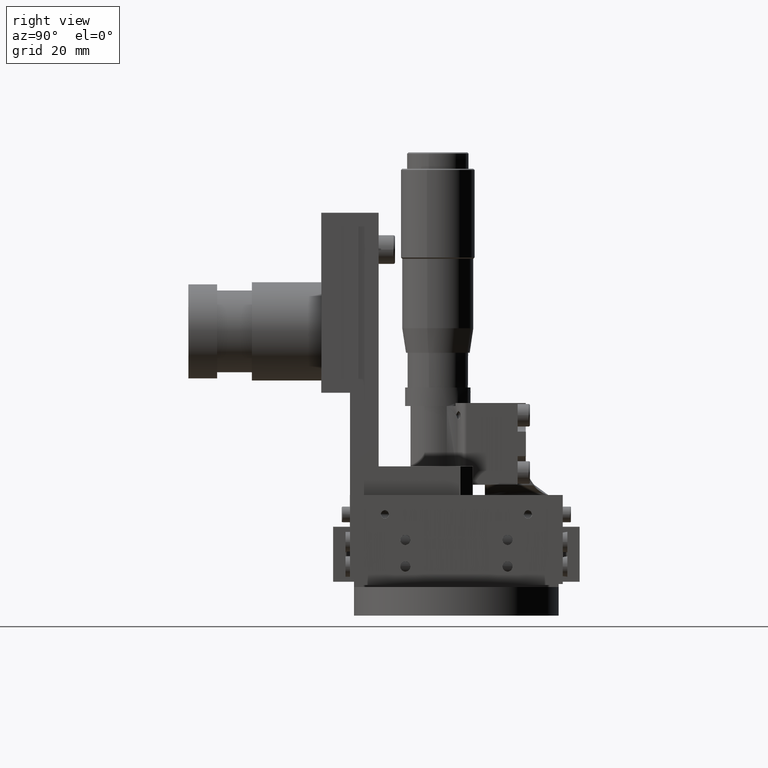
[diagram: clean part render]
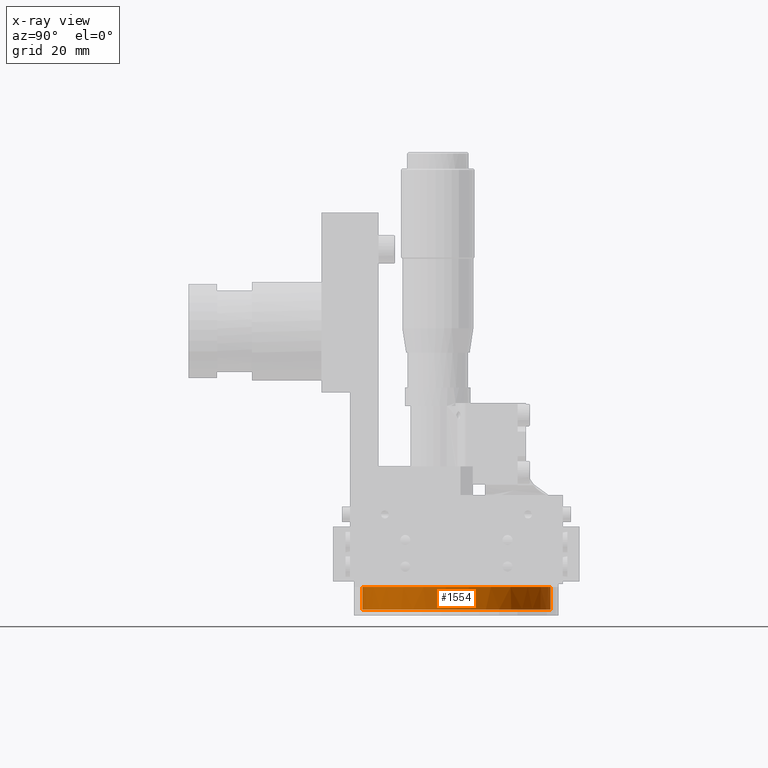
[diagram: x-ray — body ghosted, one internal face saturated and labeled with its STEP entity id]
A machine part, right view, then the same camera in x-ray: the body is ghosted and one INTERNAL B-rep face — a face not visible from any outside direction — is saturated and labeled: STEP entity #1554.
In plain terms, the highlighted face is a freeform B-spline surface patch.
Its self-contained STEP definition (entity closure, byte-faithful):
#212=B_SPLINE_SURFACE_WITH_KNOTS('',1,1,((#40897,#40898),(#40899,#40900)),
 .UNSPECIFIED.,.F.,.F.,.F.,(2,2),(2,2),(-45.511755249109,-4.48323901406241),
(-8.39228675939994,0.896858917189431),.UNSPECIFIED.);
#283=B_SPLINE_SURFACE_WITH_KNOTS('',1,1,((#42717,#42718),(#42719,#42720)),
 .UNSPECIFIED.,.F.,.F.,.F.,(2,2),(2,2),(-38.8628405200425,35.6357210641812),
(-4.34278893898734,70.1557726452363),.UNSPECIFIED.);
#288=B_SPLINE_SURFACE_WITH_KNOTS('',1,1,((#43043,#43044),(#43045,#43046)),
 .UNSPECIFIED.,.F.,.F.,.F.,(2,2),(2,2),(-34.256608843568,31.041745323592),
(13.1946699894578,62.1183055318018),.UNSPECIFIED.);
#1554=ADVANCED_FACE('',(#2542),#35904,.T.);
#2542=FACE_OUTER_BOUND('',#3590,.T.);
#3590=EDGE_LOOP('',(#6323,#6324,#6325,#6326,#6327,#6328));
#6323=ORIENTED_EDGE('',*,*,#26129,.F.);
#6324=ORIENTED_EDGE('',*,*,#26132,.T.);
#6325=ORIENTED_EDGE('',*,*,#25576,.F.);
#6326=ORIENTED_EDGE('',*,*,#26130,.F.);
#6327=ORIENTED_EDGE('',*,*,#26123,.F.);
#6328=ORIENTED_EDGE('',*,*,#26125,.F.);
#10079=(
BOUNDED_CURVE()
B_SPLINE_CURVE(2,(#50669,#50670,#50671),.UNSPECIFIED.,.F.,.F.)
B_SPLINE_CURVE_WITH_KNOTS((3,3),(0.,19.1199882821081),.UNSPECIFIED.)
CURVE()
GEOMETRIC_REPRESENTATION_ITEM()
RATIONAL_B_SPLINE_CURVE((1.,0.91485327880437,1.))
REPRESENTATION_ITEM('')
);
#10080=(
BOUNDED_CURVE()
B_SPLINE_CURVE(2,(#50672,#50673,#50674),.UNSPECIFIED.,.F.,.F.)
B_SPLINE_CURVE_WITH_KNOTS((3,3),(0.,19.1199882821081),.UNSPECIFIED.)
CURVE()
GEOMETRIC_REPRESENTATION_ITEM()
RATIONAL_B_SPLINE_CURVE((1.,0.914853356549543,1.))
REPRESENTATION_ITEM('')
);
#10399=(
BOUNDED_CURVE()
B_SPLINE_CURVE(2,(#55107,#55108,#55109,#55110,#55111),.UNSPECIFIED.,.F.,
 .F.)
B_SPLINE_CURVE_WITH_KNOTS((3,2,3),(72.2566310325652,108.384946548848,144.51326206513),
 .UNSPECIFIED.)
CURVE()
GEOMETRIC_REPRESENTATION_ITEM()
RATIONAL_B_SPLINE_CURVE((1.,0.707106781186548,1.,0.707106781186548,1.))
REPRESENTATION_ITEM('')
);
#10400=(
BOUNDED_CURVE()
B_SPLINE_CURVE(2,(#55112,#55113,#55114,#55115,#55116),.UNSPECIFIED.,.F.,
 .F.)
B_SPLINE_CURVE_WITH_KNOTS((3,2,3),(72.2566310325652,108.384946548848,144.51326206513),
 .UNSPECIFIED.)
CURVE()
GEOMETRIC_REPRESENTATION_ITEM()
RATIONAL_B_SPLINE_CURVE((1.,0.707106781186548,1.,0.707106781186548,1.))
REPRESENTATION_ITEM('')
);
#10403=(
BOUNDED_CURVE()
B_SPLINE_CURVE(2,(#55123,#55124,#55125,#55126,#55127),.UNSPECIFIED.,.F.,
 .F.)
B_SPLINE_CURVE_WITH_KNOTS((3,2,3),(36.1129552283372,54.1847931304512,72.2566310325652),
 .UNSPECIFIED.)
CURVE()
GEOMETRIC_REPRESENTATION_ITEM()
RATIONAL_B_SPLINE_CURVE((1.,0.923815626942237,1.,0.923815626942237,1.))
REPRESENTATION_ITEM('')
);
#10404=(
BOUNDED_CURVE()
B_SPLINE_CURVE(2,(#55128,#55129,#55130,#55131,#55132),.UNSPECIFIED.,.F.,
 .F.)
B_SPLINE_CURVE_WITH_KNOTS((3,2,3),(36.1129552283372,36.1300130583099,72.2566310325652),
 .UNSPECIFIED.)
CURVE()
GEOMETRIC_REPRESENTATION_ITEM()
RATIONAL_B_SPLINE_CURVE((1.,0.99999994424895,1.,0.707106781186548,1.))
REPRESENTATION_ITEM('')
);
#10412=(
BOUNDED_CURVE()
B_SPLINE_CURVE(2,(#55178,#55179,#55180,#55181,#55182,#55183,#55184,#55185,
#55186),.UNSPECIFIED.,.F.,.F.)
B_SPLINE_CURVE_WITH_KNOTS((3,2,2,2,3),(-89.2803185546852,-66.9602389160139,
-44.6401592773426,-22.3200796386713,0.),.UNSPECIFIED.)
CURVE()
GEOMETRIC_REPRESENTATION_ITEM()
RATIONAL_B_SPLINE_CURVE((1.,0.884572771092192,1.,0.884572771092192,1.,0.884572771092192,
1.,0.884572771092192,1.))
REPRESENTATION_ITEM('')
);
#10437=(
BOUNDED_CURVE()
B_SPLINE_CURVE(2,(#55541,#55542,#55543,#55544,#55545,#55546,#55547,#55548,
#55549),.UNSPECIFIED.,.F.,.F.)
B_SPLINE_CURVE_WITH_KNOTS((3,2,2,2,3),(-89.2803185546852,-79.6194882966588,
-53.0796588644392,-26.5398294322196,0.),.UNSPECIFIED.)
CURVE()
GEOMETRIC_REPRESENTATION_ITEM()
RATIONAL_B_SPLINE_CURVE((1.,0.978412850141481,1.,0.837790673898807,1.,0.837790673898807,
1.,0.837790673898807,1.))
REPRESENTATION_ITEM('')
);
#12648=PCURVE('',#212,#17938);
#13574=PCURVE('',#283,#18864);
#13576=PCURVE('',#283,#18866);
#13580=PCURVE('',#35903,#18870);
#13582=PCURVE('',#35903,#18872);
#13585=PCURVE('',#35904,#18875);
#13586=PCURVE('',#35904,#18876);
#13587=PCURVE('',#35904,#18877);
#13588=PCURVE('',#35904,#18878);
#13589=PCURVE('',#35904,#18879);
#13590=PCURVE('',#35904,#18880);
#13695=PCURVE('',#288,#18985);
#17938=DEFINITIONAL_REPRESENTATION('',(#10080),#78139);
#18864=DEFINITIONAL_REPRESENTATION('',(#10400),#78139);
#18866=DEFINITIONAL_REPRESENTATION('',(#10404),#78139);
#18870=DEFINITIONAL_REPRESENTATION('',(#30106),#78139);
#18872=DEFINITIONAL_REPRESENTATION('',(#30109),#78139);
#18875=DEFINITIONAL_REPRESENTATION('',(#30112),#78139);
#18876=DEFINITIONAL_REPRESENTATION('',(#30113),#78139);
#18877=DEFINITIONAL_REPRESENTATION('',(#30114),#78139);
#18878=DEFINITIONAL_REPRESENTATION('',(#30115),#78139);
#18879=DEFINITIONAL_REPRESENTATION('',(#30116),#78139);
#18880=DEFINITIONAL_REPRESENTATION('',(#30117),#78139);
#18985=DEFINITIONAL_REPRESENTATION('',(#10437),#78139);
#22797=SURFACE_CURVE('',#10079,(#12648,#13587),.PCURVE_S1.);
#23344=SURFACE_CURVE('',#10399,(#13574,#13589),.PCURVE_S1.);
#23346=SURFACE_CURVE('',#10403,(#13576,#13590),.PCURVE_S1.);
#23350=SURFACE_CURVE('',#30105,(#13580,#13585),.PCURVE_S1.);
#23351=SURFACE_CURVE('',#30108,(#13582,#13588),.PCURVE_S1.);
#23353=SURFACE_CURVE('',#10412,(#13586,#13695),.PCURVE_S1.);
#25576=EDGE_CURVE('',#34261,#34262,#22797,.T.);
#26123=EDGE_CURVE('',#34619,#34620,#23344,.T.);
#26125=EDGE_CURVE('',#34623,#34619,#23346,.T.);
#26129=EDGE_CURVE('',#34624,#34623,#23350,.T.);
#26130=EDGE_CURVE('',#34620,#34261,#23351,.T.);
#26132=EDGE_CURVE('',#34624,#34262,#23353,.T.);
#30105=B_SPLINE_CURVE_WITH_KNOTS('',1,(#55159,#55160),.UNSPECIFIED.,.F.,
 .F.,(2,2),(-6.17000000000011,-0.670000000000115),.UNSPECIFIED.);
#30106=B_SPLINE_CURVE_WITH_KNOTS('',1,(#55161,#55162),.UNSPECIFIED.,.F.,
 .F.,(2,2),(-6.17000000000011,-0.670000000000115),.UNSPECIFIED.);
#30108=B_SPLINE_CURVE_WITH_KNOTS('',1,(#55165,#55166),.UNSPECIFIED.,.F.,
 .F.,(2,2),(0.,5.50000000000009),.UNSPECIFIED.);
#30109=B_SPLINE_CURVE_WITH_KNOTS('',1,(#55167,#55168),.UNSPECIFIED.,.F.,
 .F.,(2,2),(0.,5.50000000000009),.UNSPECIFIED.);
#30112=B_SPLINE_CURVE_WITH_KNOTS('',1,(#55176,#55177),.UNSPECIFIED.,.F.,
 .F.,(2,2),(-6.17000000000011,-0.670000000000115),.UNSPECIFIED.);
#30113=B_SPLINE_CURVE_WITH_KNOTS('',1,(#55187,#55188),.UNSPECIFIED.,.F.,
 .F.,(2,2),(-89.2803185546852,0.),.UNSPECIFIED.);
#30114=B_SPLINE_CURVE_WITH_KNOTS('',1,(#55189,#55190),.UNSPECIFIED.,.F.,
 .F.,(2,2),(0.,19.1199882821081),.UNSPECIFIED.);
#30115=B_SPLINE_CURVE_WITH_KNOTS('',1,(#55191,#55192),.UNSPECIFIED.,.F.,
 .F.,(2,2),(0.,5.50000000000009),.UNSPECIFIED.);
#30116=B_SPLINE_CURVE_WITH_KNOTS('',1,(#55193,#55194),.UNSPECIFIED.,.F.,
 .F.,(2,2),(72.2566310325652,144.51326206513),.UNSPECIFIED.);
#30117=B_SPLINE_CURVE_WITH_KNOTS('',1,(#55195,#55196),.UNSPECIFIED.,.F.,
 .F.,(2,2),(36.1129552283372,72.2566310325652),.UNSPECIFIED.);
#34261=VERTEX_POINT('',#46062);
#34262=VERTEX_POINT('',#46063);
#34619=VERTEX_POINT('',#46420);
#34620=VERTEX_POINT('',#46421);
#34623=VERTEX_POINT('',#46424);
#34624=VERTEX_POINT('',#46425);
#35903=(
BOUNDED_SURFACE()
B_SPLINE_SURFACE(1,2,((#42721,#42722,#42723,#42724,#42725,#42726,#42727,
#42728,#42729),(#42730,#42731,#42732,#42733,#42734,#42735,#42736,#42737,
#42738)),.UNSPECIFIED.,.F.,.F.,.F.)
B_SPLINE_SURFACE_WITH_KNOTS((2,2),(3,2,2,2,3),(0.,6.84000000000033),(0.,
36.1283155162826,72.2566310325653,108.384946548848,144.513262065131),
 .UNSPECIFIED.)
GEOMETRIC_REPRESENTATION_ITEM()
RATIONAL_B_SPLINE_SURFACE(((1.,0.707106781186548,1.,0.707106781186548,1.,
0.707106781186548,1.,0.707106781186548,1.),(1.,0.707106781186548,1.,0.707106781186548,
1.,0.707106781186548,1.,0.707106781186548,1.)))
REPRESENTATION_ITEM('')
SURFACE()
);
#35904=(
BOUNDED_SURFACE()
B_SPLINE_SURFACE(1,2,((#42739,#42740,#42741,#42742,#42743,#42744,#42745,
#42746,#42747),(#42748,#42749,#42750,#42751,#42752,#42753,#42754,#42755,
#42756)),.UNSPECIFIED.,.F.,.F.,.F.)
B_SPLINE_SURFACE_WITH_KNOTS((2,2),(3,2,2,2,3),(0.,6.84000000000033),(0.,
36.1283155162826,72.2566310325653,108.384946548848,144.513262065131),
 .UNSPECIFIED.)
GEOMETRIC_REPRESENTATION_ITEM()
RATIONAL_B_SPLINE_SURFACE(((1.,0.707106781186548,1.,0.707106781186548,1.,
0.707106781186548,1.,0.707106781186548,1.),(1.,0.707106781186548,1.,0.707106781186548,
1.,0.707106781186548,1.,0.707106781186548,1.)))
REPRESENTATION_ITEM('')
SURFACE()
);
#40897=CARTESIAN_POINT('',(199.23348663795,63.0660449572592,-27.5700664891471));
#40898=CARTESIAN_POINT('',(208.522630243021,63.0660449572592,-27.5638628395057));
#40899=CARTESIAN_POINT('',(199.206086212885,63.0660449572591,13.4584405963683));
#40900=CARTESIAN_POINT('',(208.495229817956,63.0660449572591,13.4646442460097));
#42717=CARTESIAN_POINT('',(185.837920536962,68.5660449572592,30.182036355504));
#42718=CARTESIAN_POINT('',(260.336465507693,68.5660449572592,30.2317893673469));
#42719=CARTESIAN_POINT('',(185.887673548804,68.5660449572594,-44.316508615228));
#42720=CARTESIAN_POINT('',(260.386218519536,68.5660449572594,-44.2667556033851));
#42721=CARTESIAN_POINT('',(223.112069528248,69.2360449572595,-30.0423596239402));
#42722=CARTESIAN_POINT('',(246.112069528248,69.2360449572595,-30.0423596239402));
#42723=CARTESIAN_POINT('',(246.112069528248,69.2360449572594,-7.04235962394018));
#42724=CARTESIAN_POINT('',(246.112069528248,69.2360449572594,15.9576403760598));
#42725=CARTESIAN_POINT('',(223.112069528248,69.2360449572594,15.9576403760598));
#42726=CARTESIAN_POINT('',(200.112069528248,69.2360449572594,15.9576403760598));
#42727=CARTESIAN_POINT('',(200.112069528248,69.2360449572594,-7.04235962394017));
#42728=CARTESIAN_POINT('',(200.112069528248,69.2360449572595,-30.0423596239402));
#42729=CARTESIAN_POINT('',(223.112069528248,69.2360449572595,-30.0423596239402));
#42730=CARTESIAN_POINT('',(223.112069528248,62.3960449572591,-30.0423596239402));
#42731=CARTESIAN_POINT('',(246.112069528248,62.3960449572591,-30.0423596239402));
#42732=CARTESIAN_POINT('',(246.112069528248,62.3960449572591,-7.04235962394019));
#42733=CARTESIAN_POINT('',(246.112069528248,62.396044957259,15.9576403760598));
#42734=CARTESIAN_POINT('',(223.112069528248,62.396044957259,15.9576403760598));
#42735=CARTESIAN_POINT('',(200.112069528248,62.396044957259,15.9576403760598));
#42736=CARTESIAN_POINT('',(200.112069528248,62.3960449572591,-7.04235962394019));
#42737=CARTESIAN_POINT('',(200.112069528248,62.3960449572591,-30.0423596239402));
#42738=CARTESIAN_POINT('',(223.112069528248,62.3960449572591,-30.0423596239402));
#42739=CARTESIAN_POINT('',(223.112069528248,69.2360449572595,-30.0423596239402));
#42740=CARTESIAN_POINT('',(246.112069528248,69.2360449572595,-30.0423596239402));
#42741=CARTESIAN_POINT('',(246.112069528248,69.2360449572594,-7.04235962394018));
#42742=CARTESIAN_POINT('',(246.112069528248,69.2360449572594,15.9576403760598));
#42743=CARTESIAN_POINT('',(223.112069528248,69.2360449572594,15.9576403760598));
#42744=CARTESIAN_POINT('',(200.112069528248,69.2360449572594,15.9576403760598));
#42745=CARTESIAN_POINT('',(200.112069528248,69.2360449572594,-7.04235962394017));
#42746=CARTESIAN_POINT('',(200.112069528248,69.2360449572595,-30.0423596239402));
#42747=CARTESIAN_POINT('',(223.112069528248,69.2360449572595,-30.0423596239402));
#42748=CARTESIAN_POINT('',(223.112069528248,62.3960449572591,-30.0423596239402));
#42749=CARTESIAN_POINT('',(246.112069528248,62.3960449572591,-30.0423596239402));
#42750=CARTESIAN_POINT('',(246.112069528248,62.3960449572591,-7.04235962394019));
#42751=CARTESIAN_POINT('',(246.112069528248,62.396044957259,15.9576403760598));
#42752=CARTESIAN_POINT('',(223.112069528248,62.396044957259,15.9576403760598));
#42753=CARTESIAN_POINT('',(200.112069528248,62.396044957259,15.9576403760598));
#42754=CARTESIAN_POINT('',(200.112069528248,62.3960449572591,-7.04235962394019));
#42755=CARTESIAN_POINT('',(200.112069528248,62.3960449572591,-30.0423596239402));
#42756=CARTESIAN_POINT('',(223.112069528248,62.3960449572591,-30.0423596239402));
#43043=CARTESIAN_POINT('',(203.378451773594,63.0660449572592,25.5875178974971));
#43044=CARTESIAN_POINT('',(252.302076405762,63.0660449572592,25.620190987645));
#43045=CARTESIAN_POINT('',(203.422060532195,63.0660449572594,-39.7108217078562));
#43046=CARTESIAN_POINT('',(252.345685164363,63.0660449572594,-39.6781486177082));
#46062=CARTESIAN_POINT('',(200.112074657344,63.0660449572592,-7.05771991074375));
#46063=CARTESIAN_POINT('',(207.60072464099,63.0660449572592,9.9399305569668));
#46420=CARTESIAN_POINT('',(246.112064399152,68.5660449572593,-7.02699933713661));
#46421=CARTESIAN_POINT('',(200.112074657344,68.5660449572593,-7.05771991074375));
#46424=CARTESIAN_POINT('',(223.112069528248,68.5660449572593,-30.0423596239402));
#46425=CARTESIAN_POINT('',(223.112069528248,63.0660449572593,-30.0423596239402));
#50669=CARTESIAN_POINT('',(200.112074657344,63.0660449572592,-7.05771991074375));
#50670=CARTESIAN_POINT('',(200.105295127268,63.0660449572591,3.09372836474521));
#50671=CARTESIAN_POINT('',(207.60072464099,63.0660449572592,9.9399305569668));
#50672=CARTESIAN_POINT('',(-24.9999999999997,-7.50000000000089));
#50673=CARTESIAN_POINT('',(-14.848550323376,-7.49999804543738));
#50674=CARTESIAN_POINT('',(-8.00735453203304,-5.10604579451179E-13));
#55107=CARTESIAN_POINT('',(246.112064399152,68.5660449572593,-7.02699933713662));
#55108=CARTESIAN_POINT('',(246.096704112348,68.5660449572593,15.9729955337669));
#55109=CARTESIAN_POINT('',(223.096709241444,68.5660449572593,15.9576352469633));
#55110=CARTESIAN_POINT('',(200.096714370541,68.5660449572593,15.9422749601598));
#55111=CARTESIAN_POINT('',(200.112074657345,68.5660449572593,-7.05771991074374));
#55112=CARTESIAN_POINT('',(-1.613559727931,55.9064918531235));
#55113=CARTESIAN_POINT('',(-24.613559727931,55.9064918531235));
#55114=CARTESIAN_POINT('',(-24.613559727931,32.9064918531235));
#55115=CARTESIAN_POINT('',(-24.613559727931,9.90649185312345));
#55116=CARTESIAN_POINT('',(-1.61355972793099,9.90649185312349));
#55123=CARTESIAN_POINT('',(223.112069528248,68.5660449572594,-30.0423596239402));
#55124=CARTESIAN_POINT('',(232.643480698203,68.5660449572594,-30.0423596239402));
#55125=CARTESIAN_POINT('',(239.380955270617,68.5660449572593,-23.3003840027434));
#55126=CARTESIAN_POINT('',(246.11842984303,68.5660449572593,-16.5584083815466));
#55127=CARTESIAN_POINT('',(246.112064399152,68.5660449572593,-7.02699933713661));
#55128=CARTESIAN_POINT('',(21.3864351429725,32.8911315663199));
#55129=CARTESIAN_POINT('',(21.386440272069,32.8988117088654));
#55130=CARTESIAN_POINT('',(21.386440272069,32.9064918531235));
#55131=CARTESIAN_POINT('',(21.386440272069,55.9064918531235));
#55132=CARTESIAN_POINT('',(-1.613559727931,55.9064918531235));
#55159=CARTESIAN_POINT('',(223.112069528248,63.0660449572593,-30.0423596239402));
#55160=CARTESIAN_POINT('',(223.112069528248,68.5660449572593,-30.0423596239402));
#55161=CARTESIAN_POINT('',(6.17000000000011,144.513262065131));
#55162=CARTESIAN_POINT('',(0.670000000000115,144.513262065131));
#55165=CARTESIAN_POINT('',(200.112074657344,68.5660449572593,-7.05771991074375));
#55166=CARTESIAN_POINT('',(200.112074657344,63.0660449572592,-7.05771991074375));
#55167=CARTESIAN_POINT('',(0.670000000000115,108.402005180345));
#55168=CARTESIAN_POINT('',(6.17000000000021,108.402005180345));
#55176=CARTESIAN_POINT('',(6.17000000000011,0.));
#55177=CARTESIAN_POINT('',(0.670000000000115,0.));
#55178=CARTESIAN_POINT('',(223.112069528248,63.0660449572593,-30.0423596239402));
#55179=CARTESIAN_POINT('',(235.239110923075,63.0660449572593,-30.0423596239401));
#55180=CARTESIAN_POINT('',(242.090137127959,63.0660449572593,-20.0359330423952));
#55181=CARTESIAN_POINT('',(248.941163332843,63.0660449572593,-10.0295064608503));
#55182=CARTESIAN_POINT('',(244.554931675835,63.0660449572592,1.27651427338299));
#55183=CARTESIAN_POINT('',(240.168700018827,63.0660449572592,12.5825350076163));
#55184=CARTESIAN_POINT('',(228.361776156057,63.0660449572592,15.3505093374485));
#55185=CARTESIAN_POINT('',(216.554852293287,63.0660449572592,18.1184836672807));
#55186=CARTESIAN_POINT('',(207.60072464099,63.0660449572592,9.93993055696679));
#55187=CARTESIAN_POINT('',(6.17000000000011,0.));
#55188=CARTESIAN_POINT('',(6.17000000000017,89.3341928937659));
#55189=CARTESIAN_POINT('',(6.17000000000022,108.402005180345));
#55190=CARTESIAN_POINT('',(6.17000000000017,89.3341928937659));
#55191=CARTESIAN_POINT('',(0.670000000000115,108.402005180345));
#55192=CARTESIAN_POINT('',(6.17000000000022,108.402005180345));
#55193=CARTESIAN_POINT('',(0.670000000000115,36.1453741477801));
#55194=CARTESIAN_POINT('',(0.670000000000115,108.402005180345));
#55195=CARTESIAN_POINT('',(0.670000000000115,0.));
#55196=CARTESIAN_POINT('',(0.670000000000115,36.1453741477801));
#55541=CARTESIAN_POINT('',(21.3864351429725,32.89113156632));
#55542=CARTESIAN_POINT('',(21.3896795347508,37.7491785034699));
#55543=CARTESIAN_POINT('',(19.4280656845697,42.1935796636271));
#55544=CARTESIAN_POINT('',(13.3756330827651,55.9064918531235));
#55545=CARTESIAN_POINT('',(-1.61355972793105,55.9064918531235));
#55546=CARTESIAN_POINT('',(-16.6027525386272,55.9064918531235));
#55547=CARTESIAN_POINT('',(-22.6551851404317,42.193579663627));
#55548=CARTESIAN_POINT('',(-28.7076177422362,28.4806674741306));
#55549=CARTESIAN_POINT('',(-18.6062051958977,17.4064918531239));
#78139=(
GEOMETRIC_REPRESENTATION_CONTEXT(2)
PARAMETRIC_REPRESENTATION_CONTEXT()
REPRESENTATION_CONTEXT('pspace','')
);